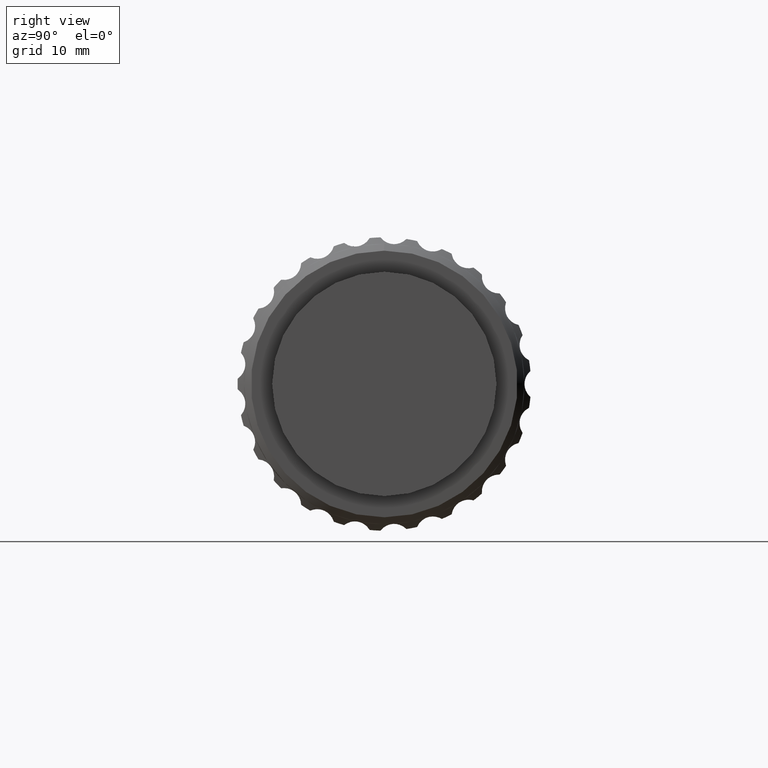
[diagram: clean part render]
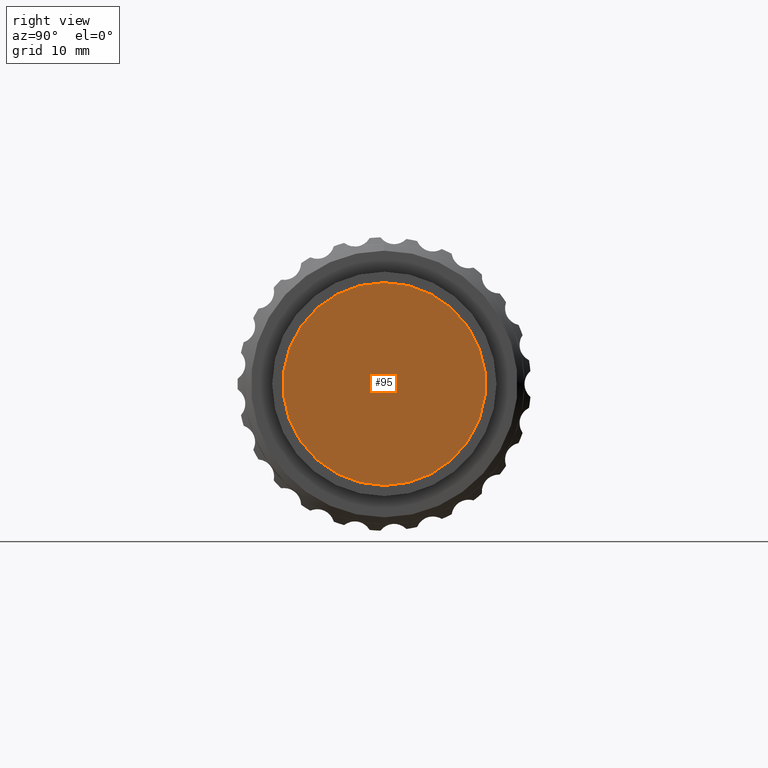
[diagram: same view with one face highlighted and labeled with its STEP entity id]
A machine part, right view. The second image highlights one B-rep face of the part: STEP entity #95.
In plain terms, the highlighted planar face has unit normal (-1, 0, -0).
Its self-contained STEP definition (entity closure, byte-faithful):
#95 = ADVANCED_FACE ( 'NONE', ( #6792 ), #23716, .F. ) ;
#4092 = AXIS2_PLACEMENT_3D ( 'NONE', #51963, #13958, #26729 ) ;
#4603 = VERTEX_POINT ( 'NONE', #14069 ) ;
#6724 = CARTESIAN_POINT ( 'NONE',  ( 69.84999999999999432, 0.000000000000000000, 0.000000000000000000 ) ) ;
#6792 = FACE_OUTER_BOUND ( 'NONE', #38729, .T. ) ;
#12950 = AXIS2_PLACEMENT_3D ( 'NONE', #6724, #38012, #41631 ) ;
#13182 = VERTEX_POINT ( 'NONE', #24979 ) ;
#13958 = DIRECTION ( 'NONE',  ( -1.000000000000000000, -0.000000000000000000, -0.000000000000000000 ) ) ;
#14069 = CARTESIAN_POINT ( 'NONE',  ( 69.84999999999999432, 1.438959988998140160E-15, -11.75000000000000000 ) ) ;
#18995 = CARTESIAN_POINT ( 'NONE',  ( 69.84999999999999432, 11.75000000000000000, 0.000000000000000000 ) ) ;
#23327 = EDGE_CURVE ( 'NONE', #4603, #13182, #36000, .T. ) ;
#23460 = EDGE_CURVE ( 'NONE', #13182, #4603, #49266, .T. ) ;
#23716 = PLANE ( 'NONE',  #39733 ) ;
#24979 = CARTESIAN_POINT ( 'NONE',  ( 69.84999999999999432, 0.000000000000000000, 11.75000000000000000 ) ) ;
#26729 = DIRECTION ( 'NONE',  ( 0.000000000000000000, 0.000000000000000000, 1.000000000000000000 ) ) ;
#36000 = CIRCLE ( 'NONE', #4092, 11.75000000000000000 ) ;
#38012 = DIRECTION ( 'NONE',  ( -1.000000000000000000, -0.000000000000000000, -0.000000000000000000 ) ) ;
#38729 = EDGE_LOOP ( 'NONE', ( #44805, #42618 ) ) ;
#39733 = AXIS2_PLACEMENT_3D ( 'NONE', #18995, #50289, #40661 ) ;
#40661 = DIRECTION ( 'NONE',  ( -0.000000000000000000, 0.000000000000000000, 1.000000000000000000 ) ) ;
#41631 = DIRECTION ( 'NONE',  ( 0.000000000000000000, 0.000000000000000000, 1.000000000000000000 ) ) ;
#42618 = ORIENTED_EDGE ( 'NONE', *, *, #23327, .F. ) ;
#44805 = ORIENTED_EDGE ( 'NONE', *, *, #23460, .F. ) ;
#49266 = CIRCLE ( 'NONE', #12950, 11.75000000000000000 ) ;
#50289 = DIRECTION ( 'NONE',  ( -1.000000000000000000, 0.000000000000000000, -0.000000000000000000 ) ) ;
#51963 = CARTESIAN_POINT ( 'NONE',  ( 69.84999999999999432, 0.000000000000000000, 0.000000000000000000 ) ) ;